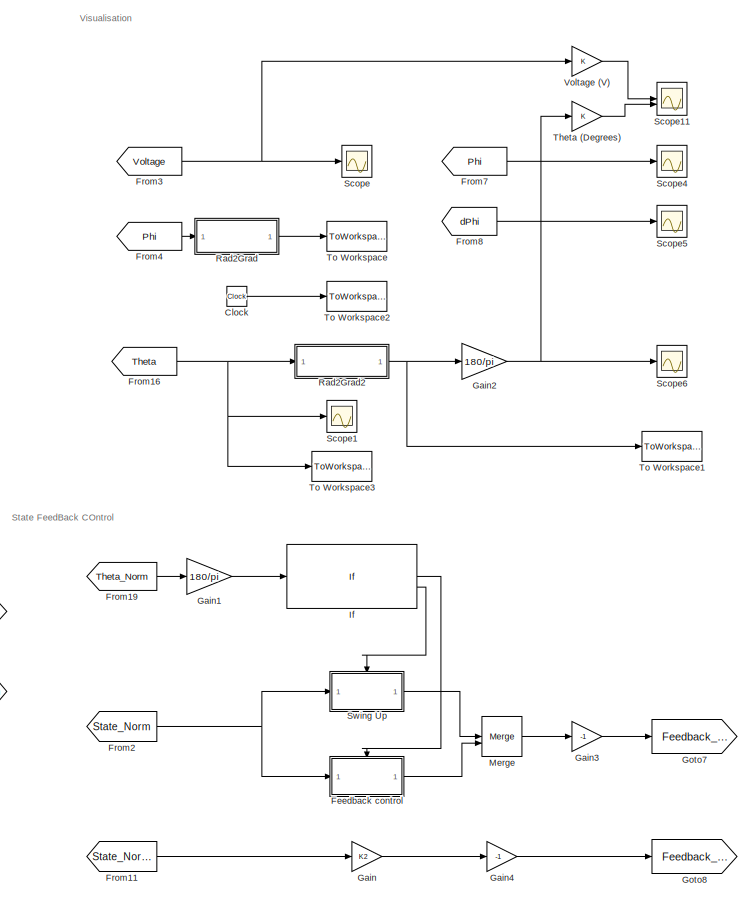
[diagram: root canvas - part 1/3, center side, full height]
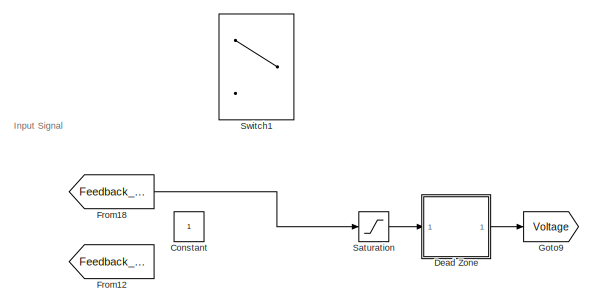
[diagram: root canvas - part 2/3, middle right region]
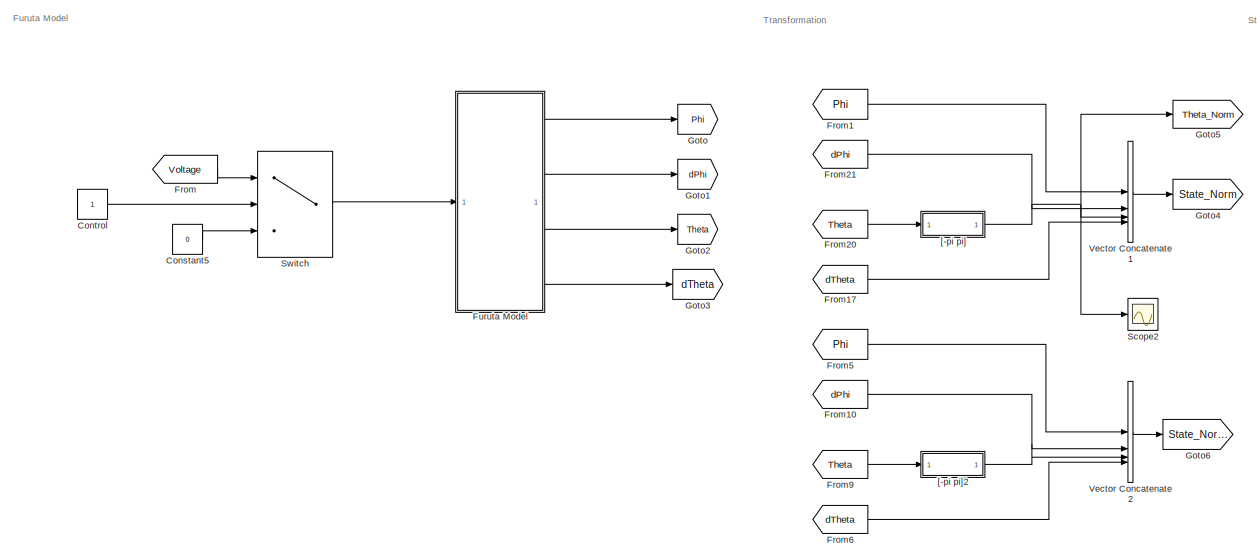
[diagram: root canvas - part 3/3, bottom left region]
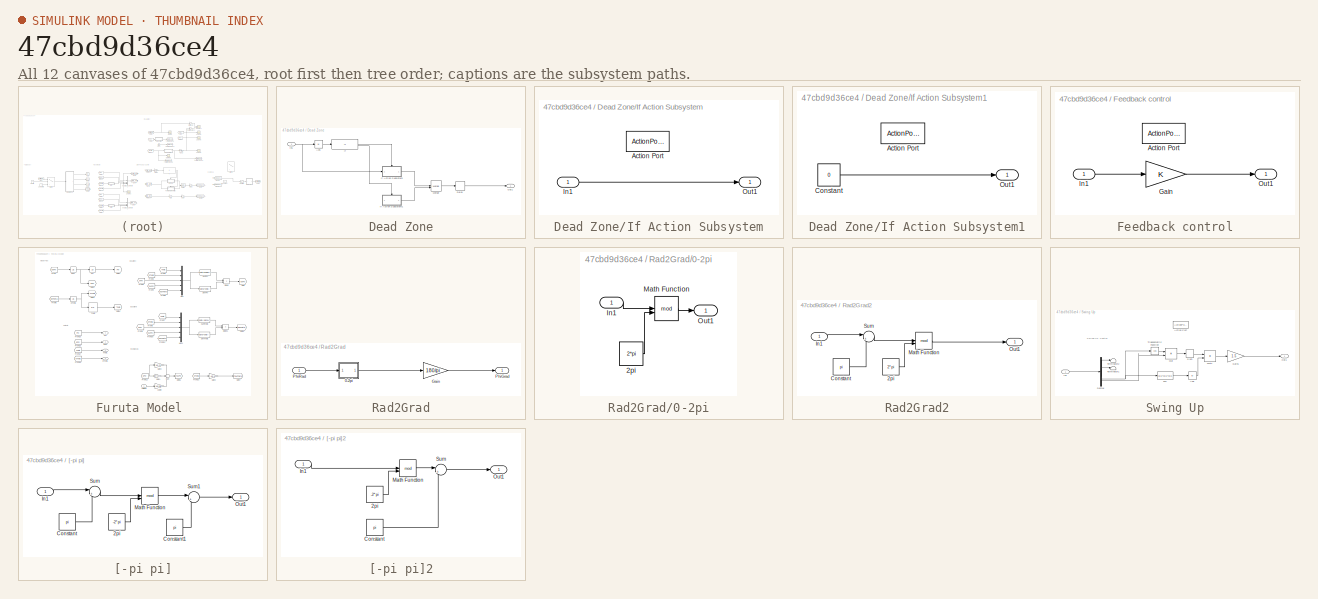
[diagram: thumbnail index - all 12 canvases of the model, root first then tree order]
MODEL slx_47cbd9d36ce4
KIND model
CONFIG AbsTol = auto
CONFIG EnableMultiTasking = off
CONFIG FixedStep = Ts
CONFIG MaxStep = auto
CONFIG MinStep = auto
CONFIG PreLoadFcn = %myBusDef
CONFIG RelTol = 1e-3
CONFIG SampleTimeConstraint = Unconstrained
CONFIG SolverName = FixedStepAuto
CONFIG StartFcn = % Full path to the block\n%blk = 'Furuta_Control/Bus Creator';\n\n% Attach the event listener\n%h = add_exec_event_listener(blk, ...\n%         'PostOutputs', @displayBusdata);
CONFIG StartTime = 0.0
CONFIG StopTime = 30
BLOCK [Clock] Clock
BLOCK [Constant] Constant
  Commented = on
BLOCK [Constant] Constant5
  Value = 0
BLOCK [Constant] Control
BLOCK [SubSystem] Dead Zone
  Commented = through
BLOCK [Abs] Dead Zone/Abs
  SaturateOnIntegerOverflow = off
BLOCK [Delay] Dead Zone/Delay
  DelayLength = 10
  InputPortMap = u0
BLOCK [If] Dead Zone/If
  IfExpression = u1 > Zn
BLOCK [SubSystem] Dead Zone/If Action Subsystem
  TreatAsAtomicUnit = on
BLOCK [ActionPort] Dead Zone/If Action Subsystem/Action Port
  ActionPortLabel = if { }
BLOCK [Inport] Dead Zone/If Action Subsystem/In1
BLOCK [Outport] Dead Zone/If Action Subsystem/Out1
  VectorParamsAs1DForOutWhenUnconnected = off
BLOCK [SubSystem] Dead Zone/If Action Subsystem1
  TreatAsAtomicUnit = on
BLOCK [ActionPort] Dead Zone/If Action Subsystem1/Action Port
  ActionPortLabel = else { }
BLOCK [Constant] Dead Zone/If Action Subsystem1/Constant
  Value = 0
BLOCK [Outport] Dead Zone/If Action Subsystem1/Out1
  VectorParamsAs1DForOutWhenUnconnected = off
BLOCK [Inport] Dead Zone/In1
BLOCK [Merge] Dead Zone/Merge
BLOCK [Outport] Dead Zone/Out1
  VectorParamsAs1DForOutWhenUnconnected = off
BLOCK [SubSystem] Feedback control
  TreatAsAtomicUnit = on
BLOCK [ActionPort] Feedback control/Action Port
  ActionPortLabel = if((u1 < 30) & (u1 > -30 ))
BLOCK [Gain] Feedback control/Gain
  Gain = K
  Multiplication = Matrix(K*u)
  OutDataTypeStr = double
  ParamDataTypeStr = double
BLOCK [Inport] Feedback control/In1
BLOCK [Outport] Feedback control/Out1
  VectorParamsAs1DForOutWhenUnconnected = off
BLOCK [From] From
  GotoTag = Voltage
BLOCK [From] From1
  GotoTag = Phi
BLOCK [From] From10
  Commented = on
  GotoTag = dPhi
BLOCK [From] From11
  Commented = on
  GotoTag = State_Norm2
BLOCK [From] From12
  Commented = on
  GotoTag = Feedback_down
BLOCK [From] From16
  GotoTag = Theta
BLOCK [From] From17
  GotoTag = dTheta
BLOCK [From] From18
  GotoTag = Feedback_up
BLOCK [From] From19
  GotoTag = Theta_Norm
BLOCK [From] From2
  GotoTag = State_Norm
BLOCK [From] From20
  GotoTag = Theta
BLOCK [From] From21
  GotoTag = dPhi
BLOCK [From] From3
  GotoTag = Voltage
BLOCK [From] From4
  GotoTag = Phi
BLOCK [From] From5
  Commented = on
  GotoTag = Phi
BLOCK [From] From6
  Commented = on
  GotoTag = dTheta
BLOCK [From] From7
  GotoTag = Phi
BLOCK [From] From8
  GotoTag = dPhi
BLOCK [From] From9
  Commented = on
  GotoTag = Theta
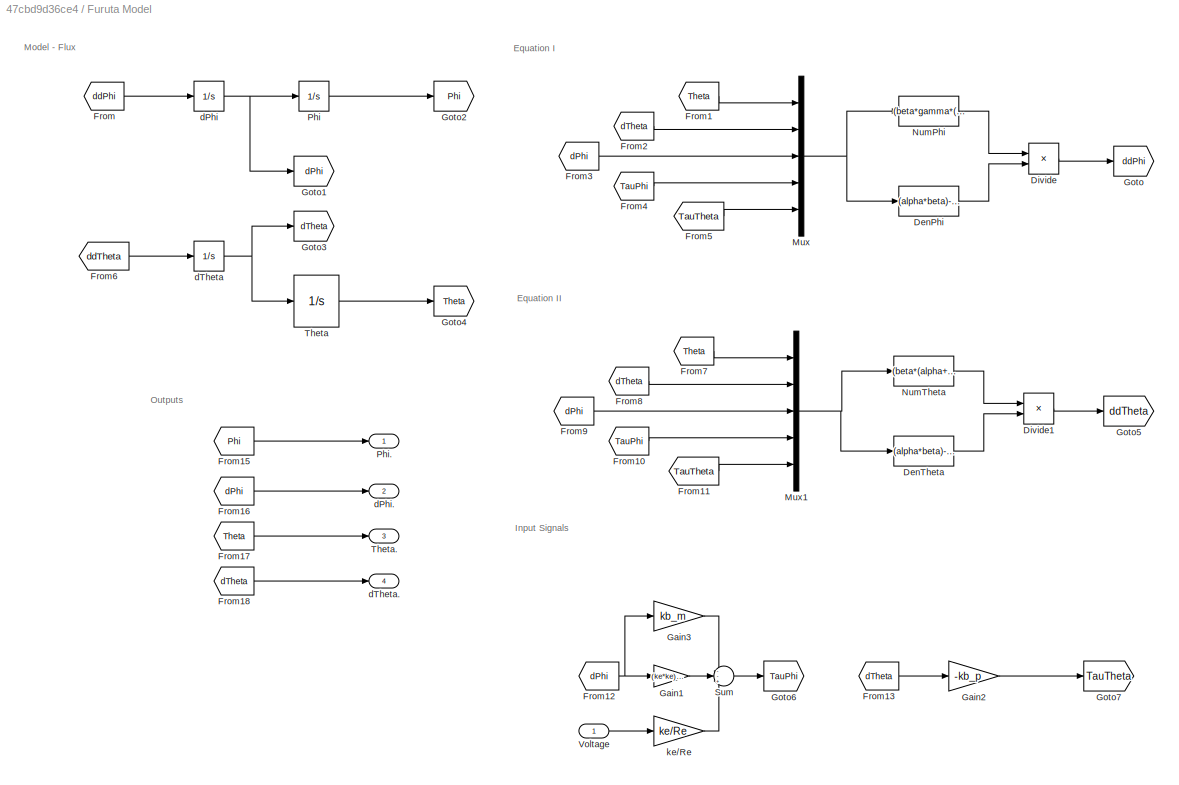
BLOCK [SubSystem] Furuta Model 
BLOCK [Fcn] Furuta Model /DenPhi
  Expr = (alpha*beta)-(gamma*gamma)+((beta*beta+gamma*gamma)*sin(u(1))*sin(u(1)))
BLOCK [Fcn] Furuta Model /DenTheta
  Expr = (alpha*beta)-(gamma*gamma)+((beta*beta+gamma*gamma)*sin(u(1))*sin(u(1)))
BLOCK [Product] Furuta Model /Divide
  Inputs = */
BLOCK [Product] Furuta Model /Divide1
  Inputs = */
BLOCK [From] Furuta Model /From
  GotoTag = ddPhi
BLOCK [From] Furuta Model /From1
  GotoTag = Theta
BLOCK [From] Furuta Model /From10
  GotoTag = TauPhi
BLOCK [From] Furuta Model /From11
  GotoTag = TauTheta
BLOCK [From] Furuta Model /From12
  GotoTag = dPhi
BLOCK [From] Furuta Model /From13
  GotoTag = dTheta
BLOCK [From] Furuta Model /From15
  GotoTag = Phi
BLOCK [From] Furuta Model /From16
  GotoTag = dPhi
BLOCK [From] Furuta Model /From17
  GotoTag = Theta
BLOCK [From] Furuta Model /From18
  GotoTag = dTheta
BLOCK [From] Furuta Model /From2
  GotoTag = dTheta
BLOCK [From] Furuta Model /From3
  GotoTag = dPhi
BLOCK [From] Furuta Model /From4
  GotoTag = TauPhi
BLOCK [From] Furuta Model /From5
  GotoTag = TauTheta
BLOCK [From] Furuta Model /From6
  GotoTag = ddTheta
BLOCK [From] Furuta Model /From7
  GotoTag = Theta
BLOCK [From] Furuta Model /From8
  GotoTag = dTheta
BLOCK [From] Furuta Model /From9
  GotoTag = dPhi
BLOCK [Gain] Furuta Model /Gain1
  Gain = (ke*ke)/Re
BLOCK [Gain] Furuta Model /Gain2
  Gain = -kb_p
BLOCK [Gain] Furuta Model /Gain3
  Gain = kb_m
BLOCK [Goto] Furuta Model /Goto
  GotoTag = ddPhi
BLOCK [Goto] Furuta Model /Goto1
  GotoTag = dPhi
BLOCK [Goto] Furuta Model /Goto2
  GotoTag = Phi
BLOCK [Goto] Furuta Model /Goto3
  GotoTag = dTheta
BLOCK [Goto] Furuta Model /Goto4
  GotoTag = Theta
BLOCK [Goto] Furuta Model /Goto5
  GotoTag = ddTheta
BLOCK [Goto] Furuta Model /Goto6
  GotoTag = TauPhi
BLOCK [Goto] Furuta Model /Goto7
  GotoTag = TauTheta
BLOCK [Mux] Furuta Model /Mux
  DisplayOption = bar
  Inputs = 5
BLOCK [Mux] Furuta Model /Mux1
  DisplayOption = bar
  Inputs = 5
BLOCK [Fcn] Furuta Model /NumPhi
  Expr = (beta*gamma*(sin(u(1))*sin(u(1))-1)*sin(u(1))*u(3)*u(3))-(2*beta*beta*cos(u(1))*sin(u(1))*u(3)*u(2))+(beta*gamma*sin(u(1))*u(2)*u(2))-(gamma*sigma*cos(u(1))*sin(u(1)))+(beta*u(4))-(gamma*cos(u(1))*u(5))
BLOCK [Fcn] Furuta Model /NumTheta
  Expr = (beta*(alpha+beta*sin(u(1))*sin(u(1)))*cos(u(1))*sin(u(1))*u(3)*u(3))+(2*beta*gamma*(1-sin(u(1))*sin(u(1)))*sin(u(1))*u(3)*u(2))-(gamma*gamma*cos(u(1))*sin(u(1))*u(2)*u(2))+(sigma*(alpha+beta*sin(u(1))*sin(u(1)))*sin(u(1)))-(gamma*cos(u(1))*u(4))+((alpha+beta*sin(u(1))*sin(u(1)))*u(5))
BLOCK [Integrator] Furuta Model /Phi
BLOCK [Outport] Furuta Model /Phi.
  VectorParamsAs1DForOutWhenUnconnected = off
BLOCK [Sum] Furuta Model /Sum
  Inputs = --+
BLOCK [Integrator] Furuta Model /Theta
  InitialCondition = initial_state
BLOCK [Outport] Furuta Model /Theta.
  Port = 3
  VectorParamsAs1DForOutWhenUnconnected = off
BLOCK [Inport] Furuta Model /Voltage 
BLOCK [Integrator] Furuta Model /dPhi
BLOCK [Outport] Furuta Model /dPhi.
  Port = 2
  VectorParamsAs1DForOutWhenUnconnected = off
BLOCK [Integrator] Furuta Model /dTheta
BLOCK [Outport] Furuta Model /dTheta.
  Port = 4
  VectorParamsAs1DForOutWhenUnconnected = off
BLOCK [Gain] Furuta Model /ke//Re 
  Gain = ke/Re
BLOCK [Gain] Gain
  Commented = on
  Gain = K2
  Multiplication = Matrix(K*u)
BLOCK [Gain] Gain1
  Gain = 180/pi
BLOCK [Gain] Gain2
  Gain = 180/pi
BLOCK [Gain] Gain3
  Gain = -1
BLOCK [Gain] Gain4
  Commented = on
  Gain = -1
BLOCK [Goto] Goto
  GotoTag = Phi
BLOCK [Goto] Goto1
  GotoTag = dPhi
BLOCK [Goto] Goto2
  GotoTag = Theta
BLOCK [Goto] Goto3
  GotoTag = dTheta
BLOCK [Goto] Goto4
  GotoTag = State_Norm
BLOCK [Goto] Goto5
  GotoTag = Theta_Norm
BLOCK [Goto] Goto6
  Commented = on
  GotoTag = State_Norm2
BLOCK [Goto] Goto7
  GotoTag = Feedback_up
BLOCK [Goto] Goto8
  Commented = on
  GotoTag = Feedback_down
BLOCK [Goto] Goto9
  GotoTag = Voltage
BLOCK [If] If
  IfExpression = (u1 < 30) & (u1 > -30 )
BLOCK [Merge] Merge
BLOCK [SubSystem] Rad2Grad
BLOCK [SubSystem] Rad2Grad/0-2pi
BLOCK [Constant] Rad2Grad/0-2pi/2pi
  Value = 2*pi
BLOCK [Inport] Rad2Grad/0-2pi/In1
BLOCK [Math] Rad2Grad/0-2pi/Math Function
  Operator = mod
  SignedPower = on
BLOCK [Outport] Rad2Grad/0-2pi/Out1
  VectorParamsAs1DForOutWhenUnconnected = off
BLOCK [Gain] Rad2Grad/Gain
  Commented = through
  Gain = 180/pi
BLOCK [Outport] Rad2Grad/PhiGrad
  VectorParamsAs1DForOutWhenUnconnected = off
BLOCK [Inport] Rad2Grad/PhiRad
BLOCK [SubSystem] Rad2Grad2
BLOCK [Constant] Rad2Grad2/2pi
  Value = 2*pi
BLOCK [Constant] Rad2Grad2/Constant
  Value = pi
BLOCK [Inport] Rad2Grad2/In1
BLOCK [Math] Rad2Grad2/Math Function
  Operator = mod
  SignedPower = on
BLOCK [Outport] Rad2Grad2/Out1
  VectorParamsAs1DForOutWhenUnconnected = off
BLOCK [Sum] Rad2Grad2/Sum
  Inputs = |+-
BLOCK [Saturate] Saturation
  LowerLimit = -255
  UpperLimit = 255
BLOCK [Scope] Scope
  Floating = off
  NumInputPorts = 1
  ScopeSpecificationString = Simulink.scopes.TimeScopeBlockCfg('CurrentConfiguration', extmgr.ConfigurationSet(extmgr.Configuration('Core','General UI',true),extmgr.Configuration('Core','Source UI',true),extmgr.Configuration('Sources','WiredSimulink',true),extmgr.Configuration('Visuals','Time Domain',true,'SerializedDisplays',{struct('MinYLimReal','-7.47008','MaxYLimReal','14.16334','YLabelReal','','MinYLimMag','0.00000','Max...<+1378ch>
BLOCK [Scope] Scope1
  Floating = off
  NumInputPorts = 1
  ScopeSpecificationString = Simulink.scopes.TimeScopeBlockCfg('CurrentConfiguration', extmgr.ConfigurationSet(extmgr.Configuration('Core','General UI',true),extmgr.Configuration('Core','Source UI',true),extmgr.Configuration('Sources','WiredSimulink',true,'DataLoggingVariableName','ScopeData2'),extmgr.Configuration('Visuals','Time Domain',true,'SerializedDisplays',{struct('MinYLimReal','-0.36495','MaxYLimReal','5.90257','YLab...<+1399ch>
BLOCK [Scope] Scope11
  Floating = off
  NumInputPorts = 2
  ScopeSpecificationString = Simulink.scopes.TimeScopeBlockCfg('CurrentConfiguration', extmgr.ConfigurationSet(extmgr.Configuration('Core','General UI',true),extmgr.Configuration('Core','Source UI',true),extmgr.Configuration('Sources','WiredSimulink',true,'DataLoggingVariableName','ScopeData1'),extmgr.Configuration('Visuals','Time Domain',true,'SerializedDisplays',{struct('MinYLimReal','-51.71904','MaxYLimReal','405.47134','Y...<+1511ch>
BLOCK [Scope] Scope2
  Floating = off
  NumInputPorts = 1
  ScopeSpecificationString = Simulink.scopes.TimeScopeBlockCfg('CurrentConfiguration', extmgr.ConfigurationSet(extmgr.Configuration('Core','General UI',true),extmgr.Configuration('Core','Source UI',true),extmgr.Configuration('Sources','WiredSimulink',true,'DataLoggingVariableName','ScopeData1'),extmgr.Configuration('Visuals','Time Domain',true,'SerializedDisplays',{struct('MinYLimReal','-3.54436','MaxYLimReal','3.69204','YLab...<+1412ch>
BLOCK [Scope] Scope4
  Floating = off
  NumInputPorts = 1
  ScopeSpecificationString = Simulink.scopes.TimeScopeBlockCfg('CurrentConfiguration', extmgr.ConfigurationSet(extmgr.Configuration('Core','General UI',true),extmgr.Configuration('Core','Source UI',true),extmgr.Configuration('Sources','WiredSimulink',true,'DataLoggingVariableName','ScopeData4'),extmgr.Configuration('Visuals','Time Domain',true,'SerializedDisplays',{struct('MinYLimReal','-5.86715','MaxYLimReal','1.89337','YLab...<+1399ch>
BLOCK [Scope] Scope5
  Floating = off
  NumInputPorts = 1
  ScopeSpecificationString = Simulink.scopes.TimeScopeBlockCfg('CurrentConfiguration', extmgr.ConfigurationSet(extmgr.Configuration('Core','General UI',true),extmgr.Configuration('Core','Source UI',true),extmgr.Configuration('Sources','WiredSimulink',true,'DataLoggingVariableName','ScopeData5'),extmgr.Configuration('Visuals','Time Domain',true,'SerializedDisplays',{struct('MinYLimReal','-1.70328','MaxYLimReal','2.05412','YLab...<+1426ch>
BLOCK [Scope] Scope6
  Floating = off
  NumInputPorts = 1
  ScopeSpecificationString = Simulink.scopes.TimeScopeBlockCfg('CurrentConfiguration', extmgr.ConfigurationSet(extmgr.Configuration('Core','General UI',true),extmgr.Configuration('Core','Source UI',true),extmgr.Configuration('Sources','WiredSimulink',true,'DataLoggingVariableName','ScopeData6'),extmgr.Configuration('Visuals','Time Domain',true,'SerializedDisplays',{struct('MinYLimReal','-45.00000','MaxYLimReal','404.99999','Y...<+1446ch>
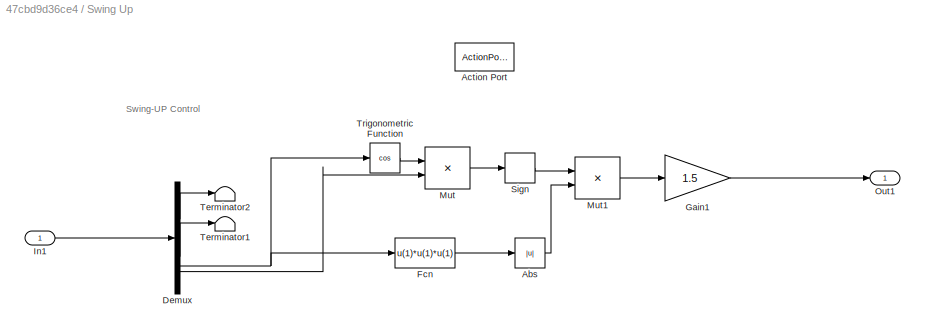
BLOCK [SubSystem] Swing Up
  TreatAsAtomicUnit = on
BLOCK [Abs] Swing Up/Abs
  SaturateOnIntegerOverflow = off
BLOCK [ActionPort] Swing Up/Action Port
  ActionPortLabel = else
BLOCK [Demux] Swing Up/Demux
BLOCK [Fcn] Swing Up/Fcn
  Expr = u(1)*u(1)*u(1)
BLOCK [Gain] Swing Up/Gain1
  Gain = 1.5
BLOCK [Inport] Swing Up/In1
BLOCK [Product] Swing Up/Mut
  Inputs = **
BLOCK [Product] Swing Up/Mut1
  Inputs = **
BLOCK [Outport] Swing Up/Out1
  InitialOutput = 0
  VectorParamsAs1DForOutWhenUnconnected = off
BLOCK [Signum] Swing Up/Sign
BLOCK [Terminator] Swing Up/Terminator1
BLOCK [Terminator] Swing Up/Terminator2
BLOCK [Trigonometry] Swing Up/Trigonometric Function
  Operator = cos
BLOCK [Switch] Switch
  Criteria = u2 > Threshold
  InputSameDT = off
  SaturateOnIntegerOverflow = off
  Threshold = 0.5
BLOCK [Switch] Switch1
  Commented = on
  Criteria = u2 > Threshold
  InputSameDT = off
  SaturateOnIntegerOverflow = off
  Threshold = 0.5
BLOCK [Gain] Theta (Degrees)
BLOCK [ToWorkspace] To Workspace
  FixptAsFi = on
  MaxDataPoints = inf
  SampleTime = -1
  Save2DSignal = 2-D array (concatenate along first dimension)
  VariableName = simPhi
BLOCK [ToWorkspace] To Workspace1
  FixptAsFi = on
  MaxDataPoints = inf
  SampleTime = -1
  Save2DSignal = 2-D array (concatenate along first dimension)
  VariableName = simTheta
BLOCK [ToWorkspace] To Workspace2
  FixptAsFi = on
  MaxDataPoints = inf
  SampleTime = -1
  Save2DSignal = 2-D array (concatenate along first dimension)
  VariableName = simt
BLOCK [ToWorkspace] To Workspace3
  FixptAsFi = on
  MaxDataPoints = inf
  SampleTime = -1
  SaveFormat = Timeseries
  VariableName = simout
BLOCK [Concatenate] Vector Concatenate1
  NumInputs = 4
BLOCK [Concatenate] Vector Concatenate2
  Commented = on
  NumInputs = 4
BLOCK [Gain] Voltage (V)
BLOCK [SubSystem] [-pi pi]
BLOCK [Constant] [-pi pi]/2pi
  Value = -2*pi
BLOCK [Constant] [-pi pi]/Constant
  Value = pi
BLOCK [Constant] [-pi pi]/Constant1
  Value = pi
BLOCK [Inport] [-pi pi]/In1
BLOCK [Math] [-pi pi]/Math Function
  Operator = mod
  SignedPower = on
BLOCK [Outport] [-pi pi]/Out1
  VectorParamsAs1DForOutWhenUnconnected = off
BLOCK [Sum] [-pi pi]/Sum
  Inputs = |+-
BLOCK [Sum] [-pi pi]/Sum1
  Inputs = |++
BLOCK [SubSystem] [-pi pi]2
  Commented = on
BLOCK [Constant] [-pi pi]2/2pi
  Value = -2*pi
BLOCK [Constant] [-pi pi]2/Constant
  Value = pi
BLOCK [Inport] [-pi pi]2/In1
BLOCK [Math] [-pi pi]2/Math Function
  Operator = mod
  SignedPower = on
BLOCK [Outport] [-pi pi]2/Out1
  VectorParamsAs1DForOutWhenUnconnected = off
BLOCK [Sum] [-pi pi]2/Sum
  Inputs = |++
ANNOTATION (root): Furuta Model
ANNOTATION (root): Input Signal
ANNOTATION (root): State FeedBack COntrol
ANNOTATION (root): Transformation
ANNOTATION (root): Visualisation
ANNOTATION Furuta Model : Equation I
ANNOTATION Furuta Model : Equation II
ANNOTATION Furuta Model : Input Signals
ANNOTATION Furuta Model : Model - Flux
ANNOTATION Furuta Model : Outputs
ANNOTATION Swing Up: Swing-UP Control
LINE Clock:1 -> To Workspace2:1
LINE Constant5:1 -> Switch:3
LINE Control:1 -> Switch:2
LINE Dead Zone/Abs:1 -> Dead Zone/If:1
LINE Dead Zone/Delay:1 -> Dead Zone/Out1:1
LINE Dead Zone/If Action Subsystem/In1:1 -> Dead Zone/If Action Subsystem/Out1:1
LINE Dead Zone/If Action Subsystem1/Constant:1 -> Dead Zone/If Action Subsystem1/Out1:1
LINE Dead Zone/If Action Subsystem1:1 -> Dead Zone/Merge:2
LINE Dead Zone/If Action Subsystem:1 -> Dead Zone/Merge:1
LINE Dead Zone/If:1 -> Dead Zone/If Action Subsystem:ifaction
LINE Dead Zone/If:2 -> Dead Zone/If Action Subsystem1:ifaction
NET Dead Zone/In1:1 -> Dead Zone/Abs:1, Dead Zone/If Action Subsystem:1
LINE Dead Zone/Merge:1 -> Dead Zone/Delay:1
LINE Dead Zone:1 -> Goto9:1
LINE Feedback control/Gain:1 -> Feedback control/Out1:1
LINE Feedback control/In1:1 -> Feedback control/Gain:1
LINE Feedback control:1 -> Merge:2
LINE From10:1 -> Vector Concatenate2:2
LINE From11:1 -> Gain:1
NET From16:1 -> Rad2Grad2:1, Scope1:1, To Workspace3:1
LINE From17:1 -> Vector Concatenate1:4
LINE From18:1 -> Saturation:1
LINE From19:1 -> Gain1:1
LINE From1:1 -> Vector Concatenate1:1
LINE From20:1 -> [-pi pi]:1
LINE From21:1 -> Vector Concatenate1:2
NET From2:1 -> Feedback control:1, Swing Up:1
NET From3:1 -> Scope:1, Voltage (V):1
LINE From4:1 -> Rad2Grad:1
LINE From5:1 -> Vector Concatenate2:1
LINE From6:1 -> Vector Concatenate2:4
LINE From7:1 -> Scope4:1
LINE From8:1 -> Scope5:1
LINE From9:1 -> [-pi pi]2:1
LINE From:1 -> Switch:1
LINE Furuta Model /DenPhi:1 -> Furuta Model /Divide:2
LINE Furuta Model /DenTheta:1 -> Furuta Model /Divide1:2
LINE Furuta Model /Divide1:1 -> Furuta Model /Goto5:1
LINE Furuta Model /Divide:1 -> Furuta Model /Goto:1
LINE Furuta Model /From10:1 -> Furuta Model /Mux1:4
LINE Furuta Model /From11:1 -> Furuta Model /Mux1:5
NET Furuta Model /From12:1 -> Furuta Model /Gain1:1, Furuta Model /Gain3:1
LINE Furuta Model /From13:1 -> Furuta Model /Gain2:1
LINE Furuta Model /From15:1 -> Furuta Model /Phi.:1
LINE Furuta Model /From16:1 -> Furuta Model /dPhi.:1
LINE Furuta Model /From17:1 -> Furuta Model /Theta.:1
LINE Furuta Model /From18:1 -> Furuta Model /dTheta.:1
LINE Furuta Model /From1:1 -> Furuta Model /Mux:1
LINE Furuta Model /From2:1 -> Furuta Model /Mux:2
LINE Furuta Model /From3:1 -> Furuta Model /Mux:3
LINE Furuta Model /From4:1 -> Furuta Model /Mux:4
LINE Furuta Model /From5:1 -> Furuta Model /Mux:5
LINE Furuta Model /From6:1 -> Furuta Model /dTheta:1
LINE Furuta Model /From7:1 -> Furuta Model /Mux1:1
LINE Furuta Model /From8:1 -> Furuta Model /Mux1:2
LINE Furuta Model /From9:1 -> Furuta Model /Mux1:3
LINE Furuta Model /From:1 -> Furuta Model /dPhi:1
LINE Furuta Model /Gain1:1 -> Furuta Model /Sum:2
LINE Furuta Model /Gain2:1 -> Furuta Model /Goto7:1
LINE Furuta Model /Gain3:1 -> Furuta Model /Sum:1
NET Furuta Model /Mux1:1 -> Furuta Model /DenTheta:1, Furuta Model /NumTheta:1
NET Furuta Model /Mux:1 -> Furuta Model /DenPhi:1, Furuta Model /NumPhi:1
LINE Furuta Model /NumPhi:1 -> Furuta Model /Divide:1
LINE Furuta Model /NumTheta:1 -> Furuta Model /Divide1:1
LINE Furuta Model /Phi:1 -> Furuta Model /Goto2:1
LINE Furuta Model /Sum:1 -> Furuta Model /Goto6:1
LINE Furuta Model /Theta:1 -> Furuta Model /Goto4:1
LINE Furuta Model /Voltage :1 -> Furuta Model /ke//Re :1
NET Furuta Model /dPhi:1 -> Furuta Model /Goto1:1, Furuta Model /Phi:1
NET Furuta Model /dTheta:1 -> Furuta Model /Goto3:1, Furuta Model /Theta:1
LINE Furuta Model /ke//Re :1 -> Furuta Model /Sum:3
LINE Furuta Model :1 -> Goto:1
LINE Furuta Model :2 -> Goto1:1
LINE Furuta Model :3 -> Goto2:1
LINE Furuta Model :4 -> Goto3:1
LINE Gain1:1 -> If:1
NET Gain2:1 -> Scope6:1, Theta (Degrees):1
LINE Gain3:1 -> Goto7:1
LINE Gain4:1 -> Goto8:1
LINE Gain:1 -> Gain4:1
LINE If:1 -> Feedback control:ifaction
LINE If:2 -> Swing Up:ifaction
LINE Merge:1 -> Gain3:1
LINE Rad2Grad/0-2pi/2pi:1 -> Rad2Grad/0-2pi/Math Function:2
LINE Rad2Grad/0-2pi/In1:1 -> Rad2Grad/0-2pi/Math Function:1
LINE Rad2Grad/0-2pi/Math Function:1 -> Rad2Grad/0-2pi/Out1:1
LINE Rad2Grad/0-2pi:1 -> Rad2Grad/Gain:1
LINE Rad2Grad/Gain:1 -> Rad2Grad/PhiGrad:1
LINE Rad2Grad/PhiRad:1 -> Rad2Grad/0-2pi:1
LINE Rad2Grad2/2pi:1 -> Rad2Grad2/Math Function:2
LINE Rad2Grad2/Constant:1 -> Rad2Grad2/Sum:2
LINE Rad2Grad2/In1:1 -> Rad2Grad2/Sum:1
LINE Rad2Grad2/Math Function:1 -> Rad2Grad2/Out1:1
LINE Rad2Grad2/Sum:1 -> Rad2Grad2/Math Function:1
NET Rad2Grad2:1 -> Gain2:1, To Workspace1:1
LINE Rad2Grad:1 -> To Workspace:1
LINE Saturation:1 -> Dead Zone:1
LINE Swing Up/Abs:1 -> Swing Up/Mut1:2
LINE Swing Up/Demux:1 -> Swing Up/Terminator2:1
LINE Swing Up/Demux:2 -> Swing Up/Terminator1:1
NET Swing Up/Demux:3 -> Swing Up/Fcn:1, Swing Up/Trigonometric Function:1
LINE Swing Up/Demux:4 -> Swing Up/Mut:2
LINE Swing Up/Fcn:1 -> Swing Up/Abs:1
LINE Swing Up/Gain1:1 -> Swing Up/Out1:1
LINE Swing Up/In1:1 -> Swing Up/Demux:1
LINE Swing Up/Mut1:1 -> Swing Up/Gain1:1
LINE Swing Up/Mut:1 -> Swing Up/Sign:1
LINE Swing Up/Sign:1 -> Swing Up/Mut1:1
LINE Swing Up/Trigonometric Function:1 -> Swing Up/Mut:1
LINE Swing Up:1 -> Merge:1
LINE Switch:1 -> Furuta Model :1
LINE Theta (Degrees):1 -> Scope11:2
LINE Vector Concatenate1:1 -> Goto4:1
LINE Vector Concatenate2:1 -> Goto6:1
LINE Voltage (V):1 -> Scope11:1
LINE [-pi pi]/2pi:1 -> [-pi pi]/Math Function:2
LINE [-pi pi]/Constant1:1 -> [-pi pi]/Sum1:2
LINE [-pi pi]/Constant:1 -> [-pi pi]/Sum:2
LINE [-pi pi]/In1:1 -> [-pi pi]/Sum:1
LINE [-pi pi]/Math Function:1 -> [-pi pi]/Sum1:1
LINE [-pi pi]/Sum1:1 -> [-pi pi]/Out1:1
LINE [-pi pi]/Sum:1 -> [-pi pi]/Math Function:1
LINE [-pi pi]2/2pi:1 -> [-pi pi]2/Math Function:2
LINE [-pi pi]2/Constant:1 -> [-pi pi]2/Sum:2
LINE [-pi pi]2/In1:1 -> [-pi pi]2/Math Function:1
LINE [-pi pi]2/Math Function:1 -> [-pi pi]2/Sum:1
LINE [-pi pi]2/Sum:1 -> [-pi pi]2/Out1:1
LINE [-pi pi]2:1 -> Vector Concatenate2:3
NET [-pi pi]:1 -> Goto5:1, Scope2:1, Vector Concatenate1:3
note: NET lines group one-source signal fan-out (src -> all destinations, sorted); 1:1 wires keep LINE
